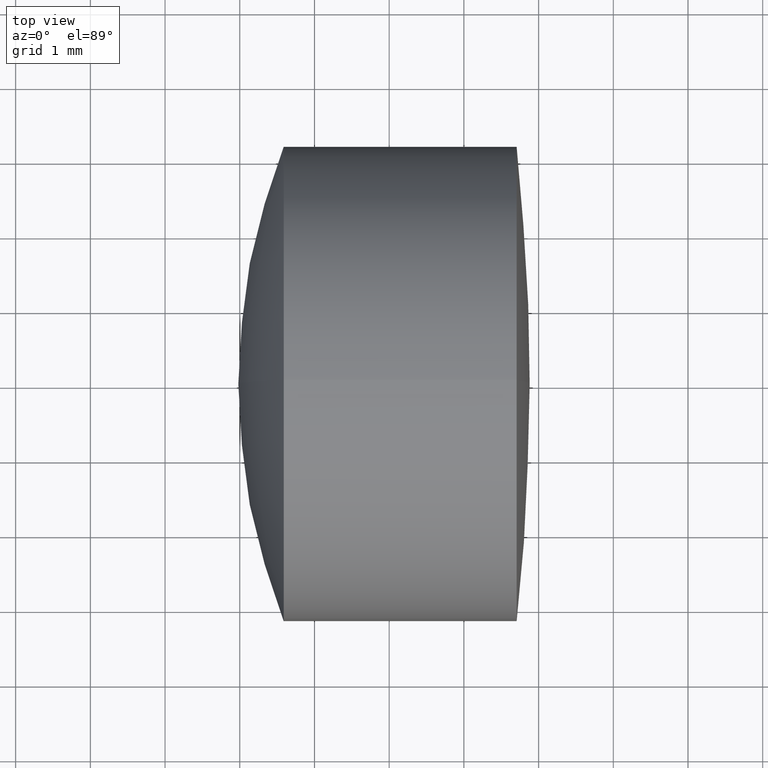
[diagram: clean part render]
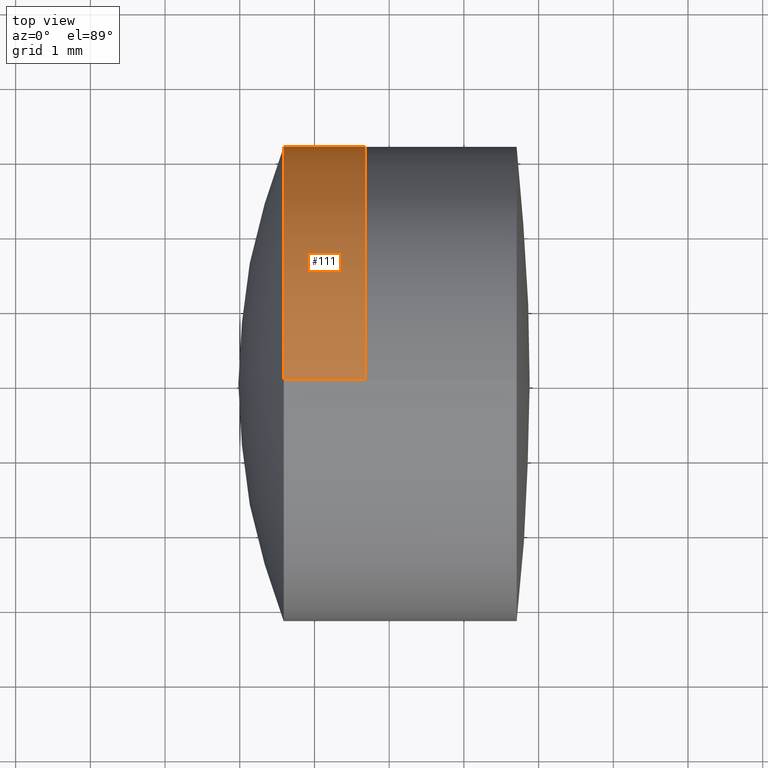
[diagram: same view with one face highlighted and labeled with its STEP entity id]
A machine part, top view. The second image highlights one B-rep face of the part: STEP entity #111.
In plain terms, the highlighted cylindrical surface (partial cylindrical patch) has radius 3.175 mm, axis along (-1, -0, -0).
Its self-contained STEP definition (entity closure, byte-faithful):
#21 = CARTESIAN_POINT ( 'NONE',  ( 261.6806597883319800, 3.888253587292846100E-016, -3.174999999999999800 ) ) ;
#22 = CARTESIAN_POINT ( 'NONE',  ( 124.5233095260452400, 0.0000000000000000000, 0.0000000000000000000 ) ) ;
#29 = AXIS2_PLACEMENT_3D ( 'NONE', #344, #131, #314 ) ;
#33 = ORIENTED_EDGE ( 'NONE', *, *, #250, .T. ) ;
#46 = VERTEX_POINT ( 'NONE', #253 ) ;
#62 = CIRCLE ( 'NONE', #29, 3.174999999999999800 ) ;
#64 = VERTEX_POINT ( 'NONE', #124 ) ;
#79 = DIRECTION ( 'NONE',  ( -1.000000000000000000, -0.0000000000000000000, -0.0000000000000000000 ) ) ;
#80 = DIRECTION ( 'NONE',  ( -1.000000000000000000, -0.0000000000000000000, -0.0000000000000000000 ) ) ;
#95 = FACE_OUTER_BOUND ( 'NONE', #226, .T. ) ;
#100 = DIRECTION ( 'NONE',  ( 0.0000000000000000000, 0.0000000000000000000, 1.000000000000000000 ) ) ;
#101 = EDGE_CURVE ( 'NONE', #195, #46, #127, .T. ) ;
#103 = CYLINDRICAL_SURFACE ( 'NONE', #278, 3.174999999999999800 ) ;
#106 = EDGE_CURVE ( 'NONE', #46, #64, #62, .T. ) ;
#111 = ADVANCED_FACE ( 'NONE', ( #95 ), #103, .T. ) ;
#124 = CARTESIAN_POINT ( 'NONE',  ( 260.5882553728641800, 0.0000000000000000000, -3.174999999999998500 ) ) ;
#127 = LINE ( 'NONE', #218, #166 ) ;
#128 = CARTESIAN_POINT ( 'NONE',  ( 261.6806597883319800, 0.0000000000000000000, 0.0000000000000000000 ) ) ;
#131 = DIRECTION ( 'NONE',  ( -1.000000000000000000, -0.0000000000000000000, -0.0000000000000000000 ) ) ;
#137 = VERTEX_POINT ( 'NONE', #21 ) ;
#141 = ORIENTED_EDGE ( 'NONE', *, *, #101, .F. ) ;
#142 = ORIENTED_EDGE ( 'NONE', *, *, #106, .F. ) ;
#143 = CIRCLE ( 'NONE', #146, 3.174999999999999800 ) ;
#146 = AXIS2_PLACEMENT_3D ( 'NONE', #128, #290, #100 ) ;
#153 = DIRECTION ( 'NONE',  ( -1.000000000000000000, -0.0000000000000000000, -0.0000000000000000000 ) ) ;
#166 = VECTOR ( 'NONE', #80, 1000.000000000000000 ) ;
#180 = DIRECTION ( 'NONE',  ( 0.0000000000000000000, 0.0000000000000000000, 1.000000000000000000 ) ) ;
#184 = VECTOR ( 'NONE', #153, 1000.000000000000000 ) ;
#195 = VERTEX_POINT ( 'NONE', #209 ) ;
#203 = CARTESIAN_POINT ( 'NONE',  ( 124.5233095260452400, 3.888253587292846100E-016, -3.174999999999999800 ) ) ;
#208 = ORIENTED_EDGE ( 'NONE', *, *, #322, .T. ) ;
#209 = CARTESIAN_POINT ( 'NONE',  ( 261.6806597883319800, 0.0000000000000000000, 3.174999999999999800 ) ) ;
#218 = CARTESIAN_POINT ( 'NONE',  ( 124.5233095260452400, 0.0000000000000000000, 3.174999999999999800 ) ) ;
#226 = EDGE_LOOP ( 'NONE', ( #33, #208, #142, #141 ) ) ;
#250 = EDGE_CURVE ( 'NONE', #195, #137, #143, .T. ) ;
#253 = CARTESIAN_POINT ( 'NONE',  ( 260.5882553728641800, -3.888253587292844600E-016, 3.174999999999998500 ) ) ;
#278 = AXIS2_PLACEMENT_3D ( 'NONE', #22, #79, #180 ) ;
#290 = DIRECTION ( 'NONE',  ( -1.000000000000000000, -0.0000000000000000000, -0.0000000000000000000 ) ) ;
#314 = DIRECTION ( 'NONE',  ( 0.0000000000000000000, 0.0000000000000000000, 1.000000000000000000 ) ) ;
#322 = EDGE_CURVE ( 'NONE', #137, #64, #324, .T. ) ;
#324 = LINE ( 'NONE', #203, #184 ) ;
#344 = CARTESIAN_POINT ( 'NONE',  ( 260.5882553728641800, 0.0000000000000000000, 0.0000000000000000000 ) ) ;